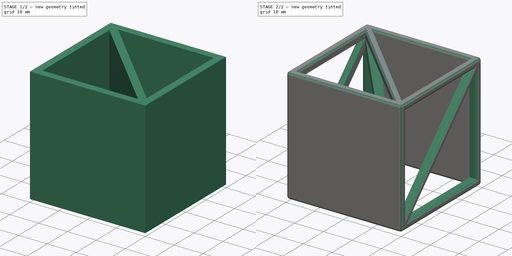
[diagram: build sequence overview — one tinted view per stage of 2, left to right]
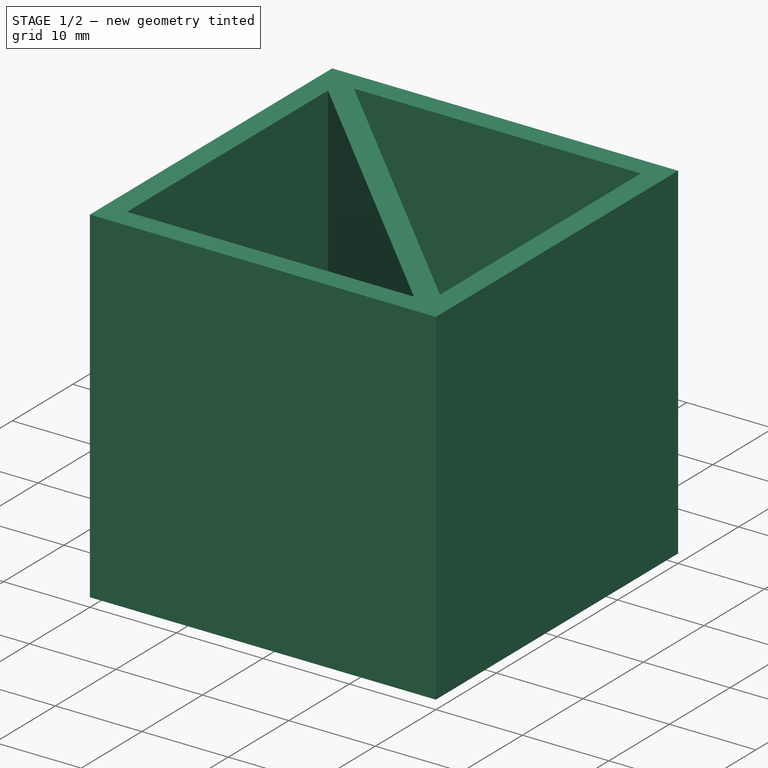
[diagram: stage 1 of 2 — iso view after this stage's code; geometry added in this stage tinted green]
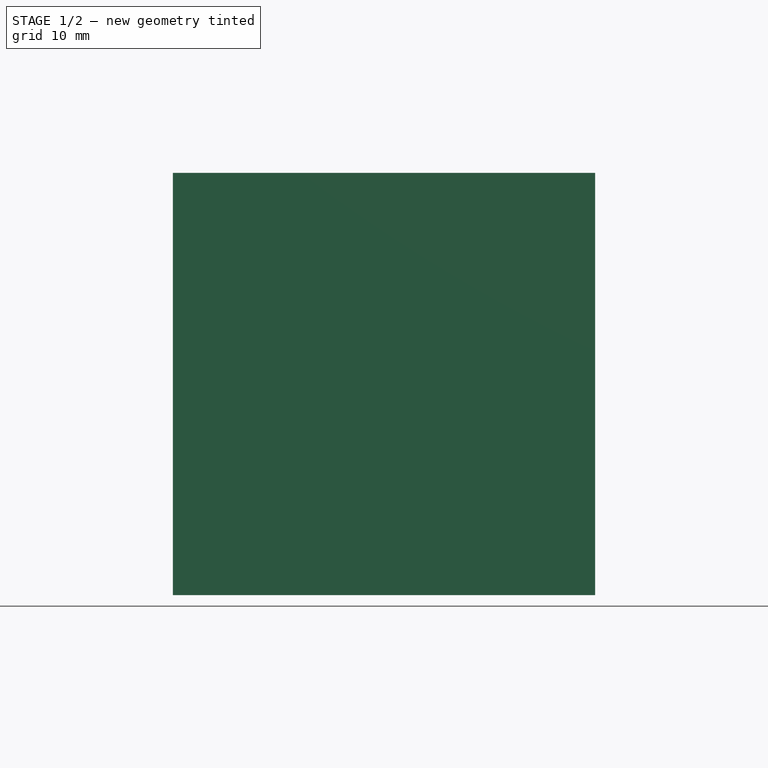
[diagram: stage 1 of 2 — front view after this stage's code; geometry added in this stage tinted green]
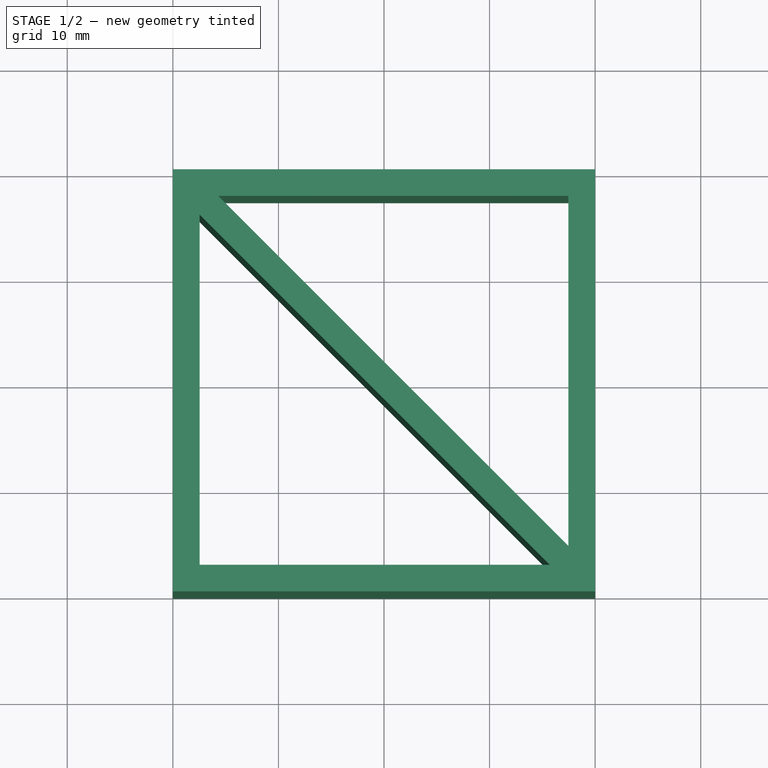
[diagram: stage 1 of 2 — top view after this stage's code; geometry added in this stage tinted green]
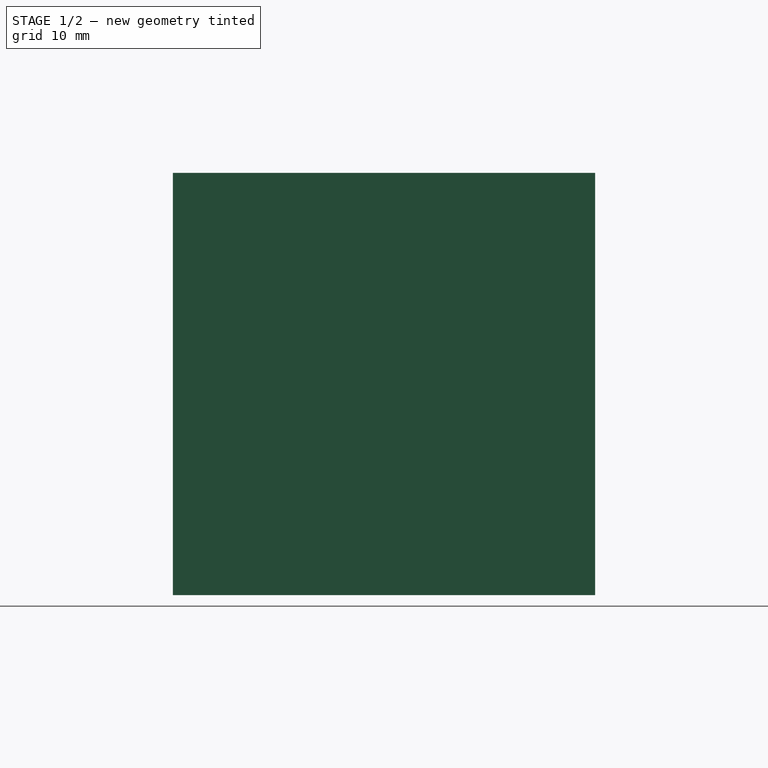
[diagram: stage 1 of 2 — right view after this stage's code; geometry added in this stage tinted green]
FCSTD DOCUMENT  (FreeCAD 0.17R13522 (Git))
Label: cubea
License: All rights reserved
LicenseURL: http://en.wikipedia.org/wiki/All_rights_reserved
objects: Sketcher::SketchObject×3, PartDesign::Pocket×2, PartDesign::Pad×1, PartDesign::Fillet×1, PartDesign::Body×1, App::Part×1
note: 11 computed .brp shape members not serialized (recipe doc carries the construction recipe); baked Part::Feature solids carry a one-line shape summary decoded from their .brp

FEATURE [Sketcher::SketchObject] Sketch
  AttachmentOffset = pos=(0,0,-20) rot=(0,0,1;0rad)
  MapMode = 5
  Placement = pos=(0,0,-20) rot=(0,0,1;0rad)
  Support = -> [XY_Plane]
  sketch-geometry (4):
    g0: LineSegment StartX=-20 StartY=20 StartZ=0 EndX=20 EndY=20 EndZ=0
    g1: LineSegment StartX=20 StartY=20 StartZ=0 EndX=20 EndY=-20 EndZ=0
    g2: LineSegment StartX=20 StartY=-20 StartZ=0 EndX=-20 EndY=-20 EndZ=0
    g3: LineSegment StartX=-20 StartY=-20 StartZ=0 EndX=-20 EndY=20 EndZ=0
  constraints (11):
    c: Coincident(g0,g1)
    c: Coincident(g1,g2)
    c: Coincident(g2,g3)
    c: Coincident(g3,g0)
    c: Horizontal(g0)
    c: Horizontal(g2)
    c: Vertical(g1)
    c: Vertical(g3)
    c: Equal(g0,g1)
    c: Symmetric(g0,g1,g-1)
    c: DistanceX(g0,g0) = 40
FEATURE [PartDesign::Pad] Pad
  Length = 40
  Length2 = 100
  Profile = -> Sketch
  Type = 0
FEATURE [Sketcher::SketchObject] Sketch001
  MapMode = 5
  Placement = pos=(0,0,20) rot=(0,0,1;0rad)
  Support = -> [Pad]
  sketch-geometry (11):
    g0: LineSegment StartX=-15.6991 StartY=17.4691 StartZ=0 EndX=17.4691 EndY=17.4691 EndZ=0
    g1: LineSegment StartX=17.4691 StartY=17.4691 StartZ=0 EndX=17.4691 EndY=-15.6991 EndZ=0
    g2: LineSegment StartX=15.6991 StartY=-17.4691 StartZ=0 EndX=-17.4691 EndY=-17.4691 EndZ=0
    g3: LineSegment StartX=-17.4691 StartY=-17.4691 StartZ=0 EndX=-17.4691 EndY=15.6991 EndZ=0
    g4: LineSegment [constr] StartX=-17.4691 StartY=-17.4691 StartZ=0 EndX=17.4691 EndY=17.4691 EndZ=0
    g5: LineSegment [constr] StartX=-17.4691 StartY=15.6991 StartZ=0 EndX=-17.4691 EndY=17.4691 EndZ=0
    g6: LineSegment [constr] StartX=-17.4691 StartY=17.4691 StartZ=0 EndX=-15.6991 EndY=17.4691 EndZ=0
    g7: LineSegment [constr] StartX=15.6991 StartY=-17.4691 StartZ=0 EndX=17.4691 EndY=-17.4691 EndZ=0
    g8: LineSegment [constr] StartX=17.4691 StartY=-17.4691 StartZ=0 EndX=17.4691 EndY=-15.6991 EndZ=0
    g9: LineSegment StartX=-17.4691 StartY=15.6991 StartZ=0 EndX=15.6991 EndY=-17.4691 EndZ=0
    g10: LineSegment StartX=17.4691 StartY=-15.6991 StartZ=0 EndX=-15.6991 EndY=17.4691 EndZ=0
  constraints (35):
    c: Coincident(g0,g1)
    c: Coincident(g2,g3)
    c: Horizontal(g0)
    c: Horizontal(g2)
    c: Vertical(g1)
    c: Vertical(g3)
    c: Equal(g0,g1)
    c: Equal(g0,g1)
    c: Equal(g3,g2)
    c: Coincident(g4,g2)
    c: Coincident(g4,g0)
    c: PointOnObject(g-1,g4)
    c: Distance(g4) = 49.41
    c: Angle(g4) = 0.785398
    c: Symmetric(g2,g0,g-1)
    c: Coincident(g3,g5)
    c: Vertical(g5)
    c: Coincident(g5,g6)
    c: Coincident(g6,g0)
    c: Horizontal(g6)
    c: Equal(g6,g5)
    c: DistanceX(g6,g6) = 1.77
    c: Coincident(g2,g7)
    c: Horizontal(g7)
    c: Coincident(g7,g8)
    c: Coincident(g8,g1)
    c: Vertical(g8)
    c: Equal(g1,g2)
    c: Equal(g2,g3)
    c: Equal(g6,g8)
    c: Equal(g8,g7)
    c: Coincident(g9,g3)
    c: Coincident(g9,g2)
    c: Coincident(g10,g1)
    c: Coincident(g10,g0)
FEATURE [PartDesign::Pocket] Pocket
  BaseFeature = -> Pad
  Length = 5
  Length2 = 100
  Profile = -> Sketch001
  Type = 2
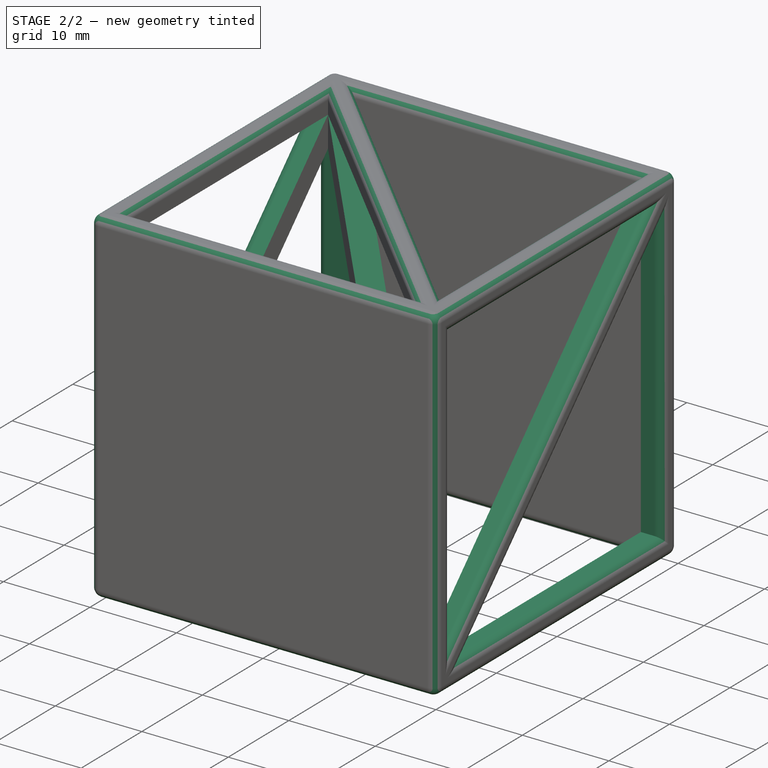
[diagram: stage 2 of 2 — iso view after this stage's code; geometry added in this stage tinted green]
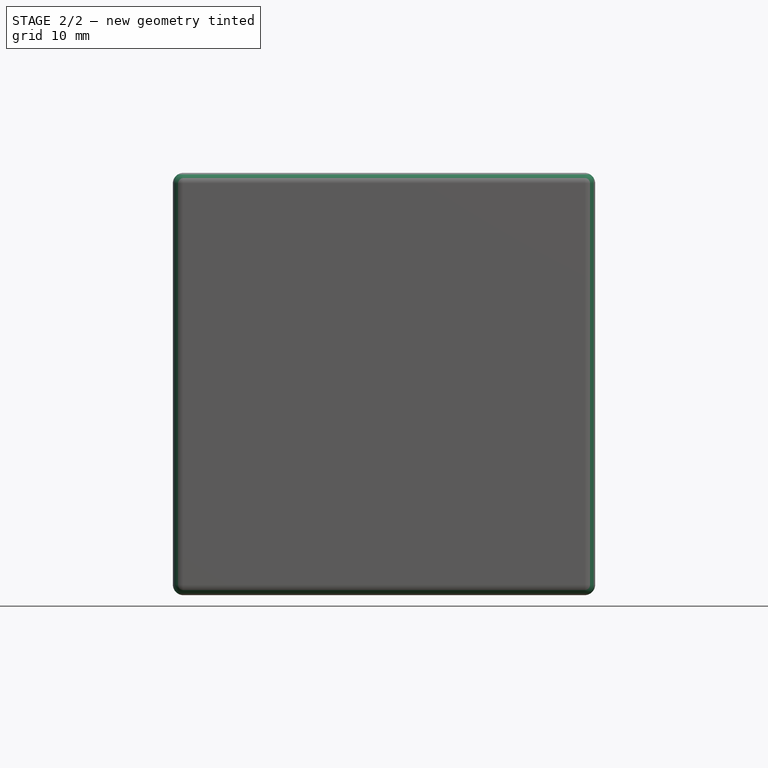
[diagram: stage 2 of 2 — front view after this stage's code; geometry added in this stage tinted green]
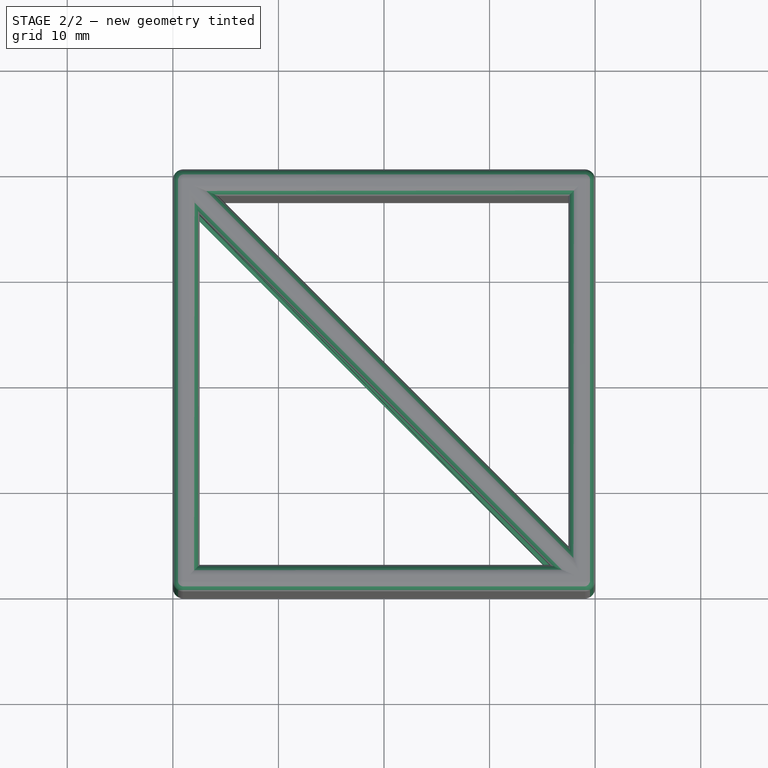
[diagram: stage 2 of 2 — top view after this stage's code; geometry added in this stage tinted green]
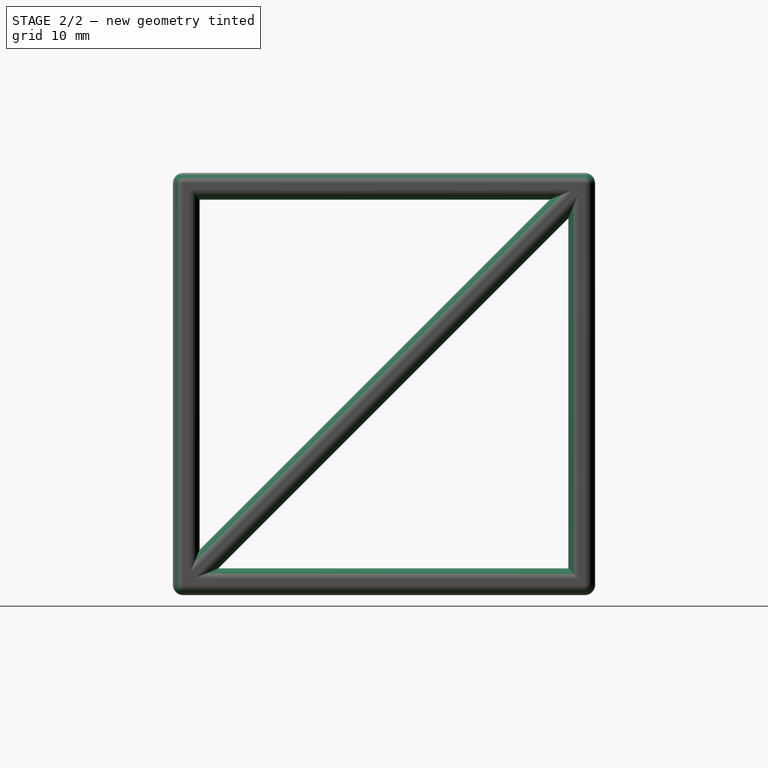
[diagram: stage 2 of 2 — right view after this stage's code; geometry added in this stage tinted green]
FEATURE [Sketcher::SketchObject] Sketch002
  MapMode = 5
  Placement = pos=(-20,0,0) rot=(0.57735,-0.57735,-0.57735;2.0944rad)
  Support = -> [Pocket]
  sketch-geometry (11):
    g0: LineSegment StartX=-15.6991 StartY=17.4691 StartZ=0 EndX=17.4691 EndY=17.4691 EndZ=0
    g1: LineSegment StartX=17.4691 StartY=17.4691 StartZ=0 EndX=17.4691 EndY=-15.6991 EndZ=0
    g2: LineSegment StartX=15.6991 StartY=-17.4691 StartZ=0 EndX=-17.4691 EndY=-17.4691 EndZ=0
    g3: LineSegment StartX=-17.4691 StartY=-17.4691 StartZ=0 EndX=-17.4691 EndY=15.6991 EndZ=0
    g4: LineSegment [constr] StartX=-17.4691 StartY=-17.4691 StartZ=0 EndX=17.4691 EndY=17.4691 EndZ=0
    g5: LineSegment [constr] StartX=-17.4691 StartY=15.6991 StartZ=0 EndX=-17.4691 EndY=17.4691 EndZ=0
    g6: LineSegment [constr] StartX=-17.4691 StartY=17.4691 StartZ=0 EndX=-15.6991 EndY=17.4691 EndZ=0
    g7: LineSegment [constr] StartX=15.6991 StartY=-17.4691 StartZ=0 EndX=17.4691 EndY=-17.4691 EndZ=0
    g8: LineSegment [constr] StartX=17.4691 StartY=-17.4691 StartZ=0 EndX=17.4691 EndY=-15.6991 EndZ=0
    g9: LineSegment StartX=-17.4691 StartY=15.6991 StartZ=0 EndX=15.6991 EndY=-17.4691 EndZ=0
    g10: LineSegment StartX=17.4691 StartY=-15.6991 StartZ=0 EndX=-15.6991 EndY=17.4691 EndZ=0
  constraints (35):
    c: Coincident(g0,g1)
    c: Coincident(g2,g3)
    c: Horizontal(g0)
    c: Horizontal(g2)
    c: Vertical(g1)
    c: Vertical(g3)
    c: Equal(g0,g1)
    c: Equal(g0,g1)
    c: Equal(g3,g2)
    c: Coincident(g4,g2)
    c: Coincident(g4,g0)
    c: PointOnObject(g-1,g4)
    c: Distance(g4) = 49.41
    c: Angle(g4) = 0.785398
    c: Symmetric(g2,g0,g-1)
    c: Coincident(g3,g5)
    c: Vertical(g5)
    c: Coincident(g5,g6)
    c: Coincident(g6,g0)
    c: Horizontal(g6)
    c: Equal(g6,g5)
    c: DistanceX(g6,g6) = 1.77
    c: Coincident(g2,g7)
    c: Horizontal(g7)
    c: Coincident(g7,g8)
    c: Coincident(g8,g1)
    c: Vertical(g8)
    c: Equal(g1,g2)
    c: Equal(g2,g3)
    c: Equal(g6,g8)
    c: Equal(g8,g7)
    c: Coincident(g9,g3)
    c: Coincident(g9,g2)
    c: Coincident(g10,g1)
    c: Coincident(g10,g0)
FEATURE [PartDesign::Pocket] Pocket001
  BaseFeature = -> Pocket
  Length = 40
  Length2 = 100
  Profile = -> Sketch002
  Type = 0
FEATURE [PartDesign::Fillet] Fillet
  Base = -> Pocket001 [Face3,Face4,Face2,Face5]
  BaseFeature = -> Pocket001
  Radius = 1
FEATURE [PartDesign::Body] Body
  Group = -> [Sketch,Pad,Sketch001,Pocket,Sketch002,Pocket001,Fillet]
  Origin = -> Origin
  Tip = -> Fillet
FEATURE [App::Part] Part
  Group = -> [Body]
  License = CC BY 3.0
  LicenseURL = http://creativecommons.org/licenses/by/3.0/
  Origin = -> Origin001
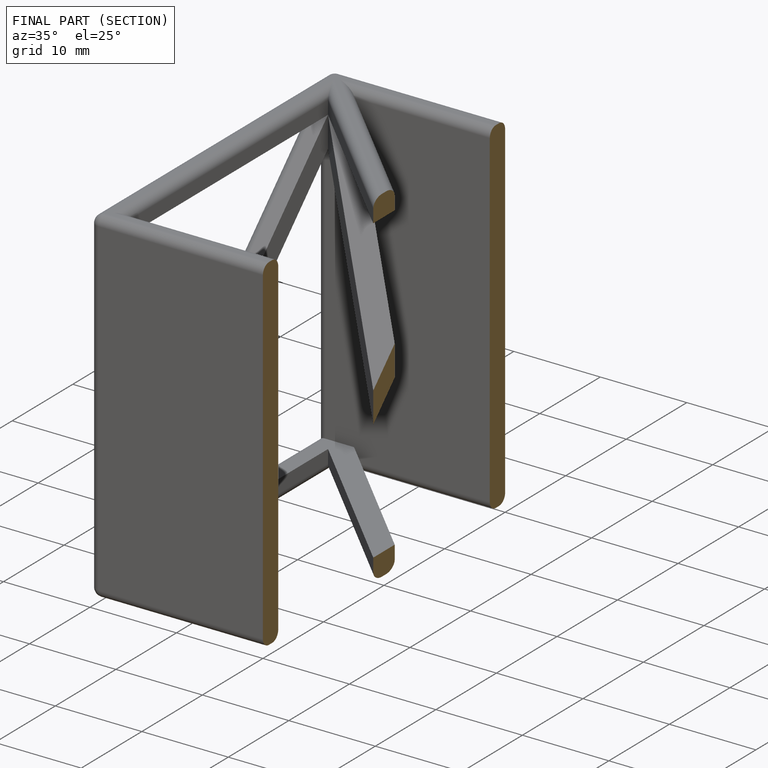
[diagram: finished part — half-section view (interior)]
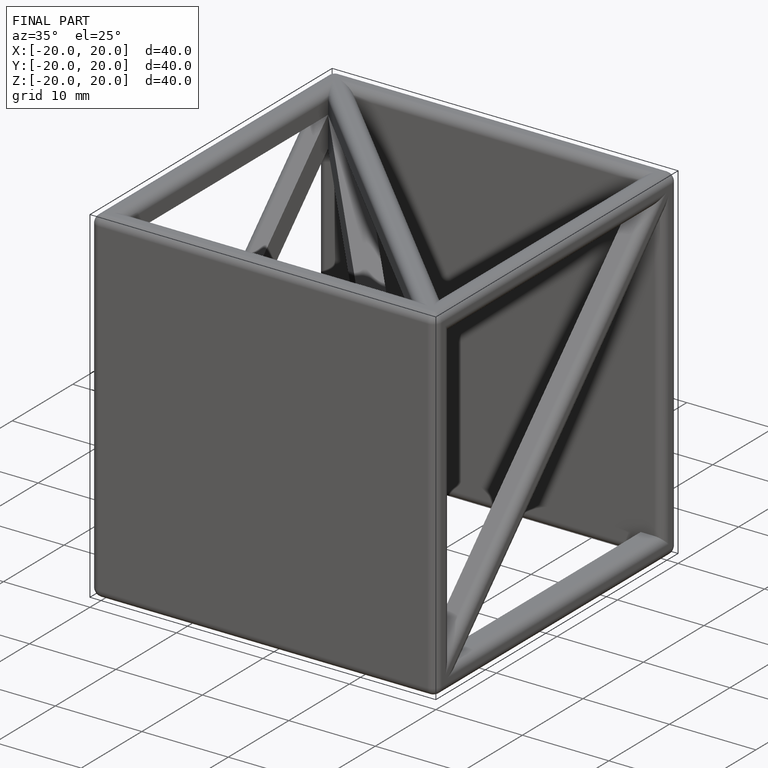
[diagram: finished part — iso view with bounding-box wireframe]
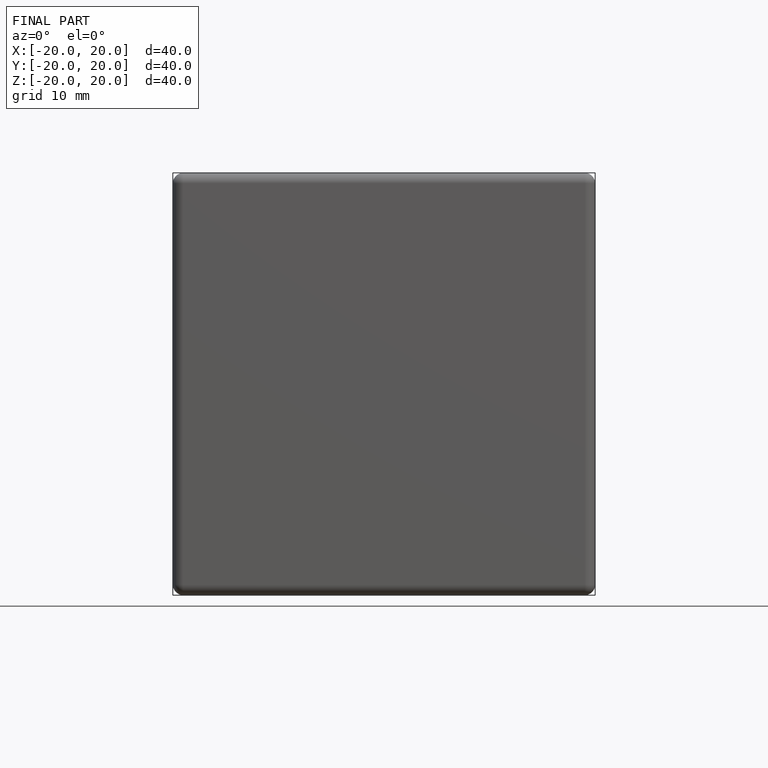
[diagram: finished part — front view with bounding-box wireframe]
